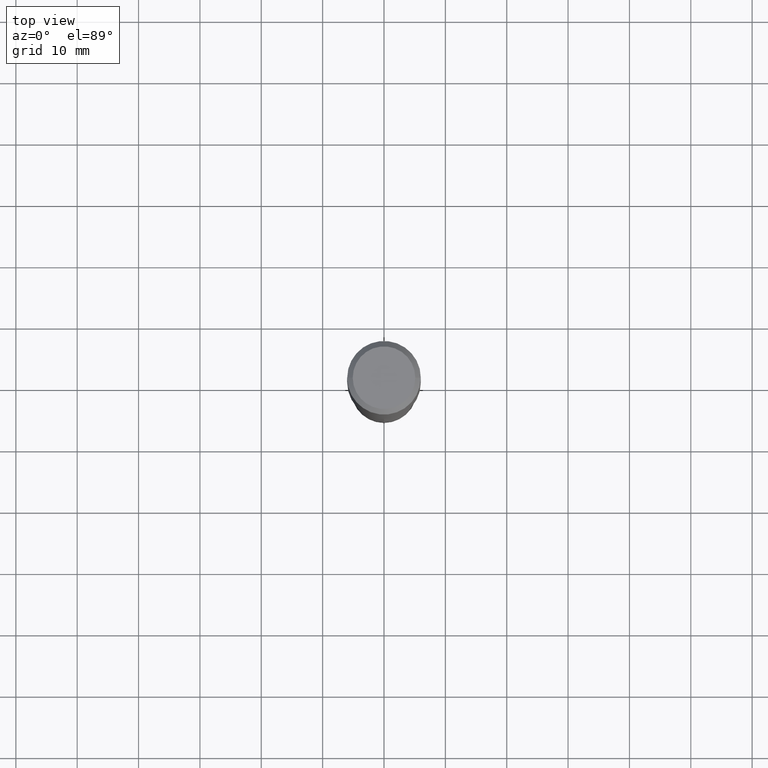
[diagram: clean part render]
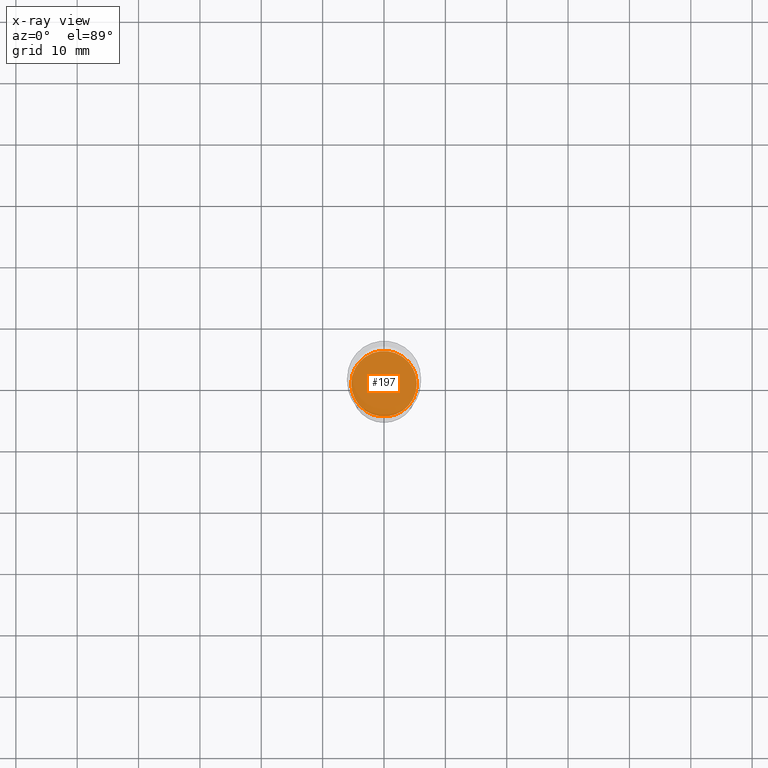
[diagram: x-ray — body ghosted, one internal face saturated and labeled with its STEP entity id]
A machine part, top view, then the same camera in x-ray: the body is ghosted and one INTERNAL B-rep face — a face not visible from any outside direction — is saturated and labeled: STEP entity #197.
In plain terms, the highlighted planar face has unit normal (-0, 0, 1).
Its self-contained STEP definition (entity closure, byte-faithful):
#2 = DIRECTION ( 'NONE',  ( -2.445468806185136597E-29, 3.491481338843145583E-15, 1.000000000000000000 ) ) ;
#3 = AXIS2_PLACEMENT_3D ( 'NONE', #55, #200, #362 ) ;
#55 = CARTESIAN_POINT ( 'NONE',  ( 5.555371487010773044E-29, -7.931598157449970914E-15, -2.271699999999999608 ) ) ;
#75 = CIRCLE ( 'NONE', #3, 0.2101500000000000035 ) ;
#79 = ORIENTED_EDGE ( 'NONE', *, *, #257, .F. ) ;
#103 = AXIS2_PLACEMENT_3D ( 'NONE', #254, #2, #210 ) ;
#112 = DIRECTION ( 'NONE',  ( 1.000000000000000000, -6.982962677686265922E-15, 4.876176775795935793E-29 ) ) ;
#141 = EDGE_CURVE ( 'NONE', #179, #389, #75, .T. ) ;
#179 = VERTEX_POINT ( 'NONE', #390 ) ;
#197 = ADVANCED_FACE ( 'NONE', ( #231 ), #311, .F. ) ;
#200 = DIRECTION ( 'NONE',  ( -2.445468806185136597E-29, 3.491481338843145583E-15, 1.000000000000000000 ) ) ;
#210 = DIRECTION ( 'NONE',  ( 1.000000000000000000, -6.982962677686263555E-15, 0.000000000000000000 ) ) ;
#218 = CARTESIAN_POINT ( 'NONE',  ( 5.555371487010773044E-29, -7.931598157449970914E-15, -2.271699999999999608 ) ) ;
#231 = FACE_OUTER_BOUND ( 'NONE', #264, .T. ) ;
#236 = ORIENTED_EDGE ( 'NONE', *, *, #141, .F. ) ;
#254 = CARTESIAN_POINT ( 'NONE',  ( 5.555371487010773044E-29, -7.931598157449970914E-15, -2.271699999999999608 ) ) ;
#257 = EDGE_CURVE ( 'NONE', #389, #179, #321, .T. ) ;
#261 = CARTESIAN_POINT ( 'NONE',  ( 0.2101500000000000035, -9.399067764165739668E-15, -2.271699999999999608 ) ) ;
#264 = EDGE_LOOP ( 'NONE', ( #79, #236 ) ) ;
#311 = PLANE ( 'NONE',  #490 ) ;
#321 = CIRCLE ( 'NONE', #103, 0.2101500000000000035 ) ;
#345 = DIRECTION ( 'NONE',  ( -2.438088387897960049E-29, 3.491481338843145188E-15, 1.000000000000000000 ) ) ;
#362 = DIRECTION ( 'NONE',  ( 1.000000000000000000, -6.982962677686263555E-15, 0.000000000000000000 ) ) ;
#389 = VERTEX_POINT ( 'NONE', #261 ) ;
#390 = CARTESIAN_POINT ( 'NONE',  ( -0.2101500000000000035, -6.435743371076010331E-15, -2.271699999999999608 ) ) ;
#490 = AXIS2_PLACEMENT_3D ( 'NONE', #218, #345, #112 ) ;